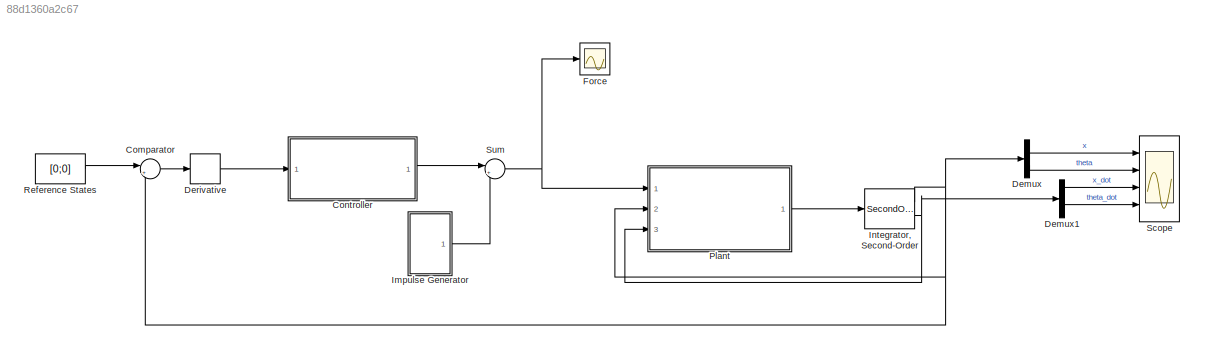
MODEL slx_88d1360a2c67
KIND model
CONFIG AbsTol = auto
CONFIG EnableMultiTasking = off
CONFIG FixedStep = auto
CONFIG MaxStep = auto
CONFIG MinStep = auto
CONFIG RelTol = 1e-3
CONFIG SampleTimeConstraint = Unconstrained
CONFIG SolverName = VariableStepAuto
CONFIG StartTime = 0.0
CONFIG StopTime = 10.0
BLOCK [Sum] Comparator
  Inputs = |+-
  NameLocation = top
  Ports = [2, 1]
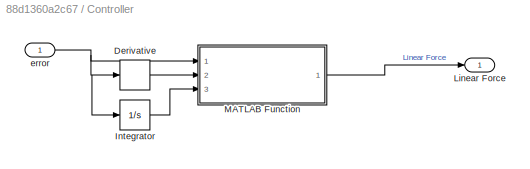
BLOCK [SubSystem] Controller
  Ports = [1, 1]
  RequestExecContextInheritance = off
BLOCK [Derivative] Controller/Derivative
BLOCK [Integrator] Controller/Integrator
  Ports = [1, 1]
BLOCK [Outport] Controller/Linear Force
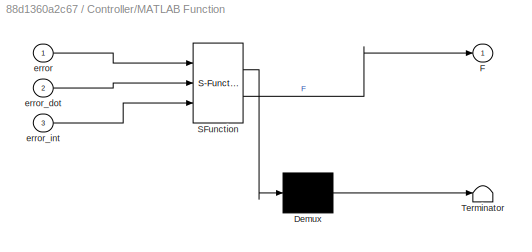
BLOCK [SubSystem] Controller/MATLAB Function
  ErrorFcn = Stateflow.Translate.translate
  PermitHierarchicalResolution = ExplicitOnly
  Ports = [3, 1]
  RequestExecContextInheritance = off
  SFBlockType = MATLAB Function
  TreatAsAtomicUnit = on
BLOCK [Demux] Controller/MATLAB Function/ Demux 
  Outputs = 1
  Ports = [1, 1]
BLOCK [S-Function] Controller/MATLAB Function/ SFunction 
  EnableBusSupport = on
  FunctionName = sf_sfun
  PortCounts = [3 2]
  Ports = [3, 2]
  SFcnIsStateOwnerBlock = off
  SFunctionDeploymentMode = off
  Tag = Stateflow S-Function 1
BLOCK [Terminator] Controller/MATLAB Function/ Terminator 
BLOCK [Outport] Controller/MATLAB Function/F
BLOCK [Inport] Controller/MATLAB Function/error
BLOCK [Inport] Controller/MATLAB Function/error_dot
  Port = 2
BLOCK [Inport] Controller/MATLAB Function/error_int
  Port = 3
BLOCK [Inport] Controller/error
BLOCK [Demux] Demux
  Outputs = 2
  Ports = [1, 2]
BLOCK [Demux] Demux1
  Outputs = 2
  Ports = [1, 2]
BLOCK [Derivative] Derivative
BLOCK [Scope] Force
  Floating = off
  NumInputPorts = 1
  Ports = [1]
  ScopeSpecificationString = Simulink.scopes.TimeScopeBlockCfg('CurrentConfiguration', extmgr.ConfigurationSet(extmgr.Configuration('Core','General UI',true),extmgr.Configuration('Core','Source UI',true),extmgr.Configuration('Sources','WiredSimulink',true,'DataLoggingVariableName','ScopeData1'),extmgr.Configuration('Visuals','Time Domain',true,'SerializedDisplays',{struct('MinYLimReal','-0.0125','MaxYLimReal','0.1125','YLabel...<+1385ch>
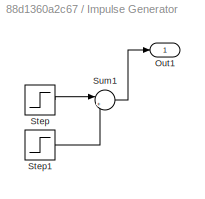
BLOCK [SubSystem] Impulse Generator
  Ports = [0, 1]
  RequestExecContextInheritance = off
BLOCK [Outport] Impulse Generator/Out1
BLOCK [Step] Impulse Generator/Step
  After = 0.1
  SampleTime = 1
BLOCK [Step] Impulse Generator/Step1
  After = 0.1
  SampleTime = 1
  Time = 2
BLOCK [Sum] Impulse Generator/Sum1
  Inputs = |+-
  Ports = [2, 1]
BLOCK [SecondOrderIntegrator] Integrator, Second-Order
  ICDXDT = [0,0]
  ICX = [0,0]
  Ports = [1, 2]
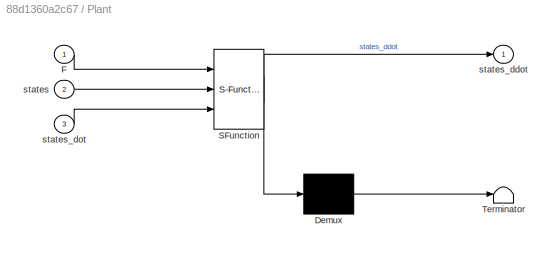
BLOCK [SubSystem] Plant
  ErrorFcn = Stateflow.Translate.translate
  PermitHierarchicalResolution = ExplicitOnly
  Ports = [3, 1]
  RequestExecContextInheritance = off
  SFBlockType = MATLAB Function
  TreatAsAtomicUnit = on
BLOCK [Demux] Plant/ Demux 
  Outputs = 1
  Ports = [1, 1]
BLOCK [S-Function] Plant/ SFunction 
  EnableBusSupport = on
  FunctionName = sf_sfun
  PortCounts = [3 2]
  Ports = [3, 2]
  SFcnIsStateOwnerBlock = off
  SFunctionDeploymentMode = off
  Tag = Stateflow S-Function 2
BLOCK [Terminator] Plant/ Terminator 
BLOCK [Inport] Plant/F
BLOCK [Inport] Plant/states
  Port = 2
BLOCK [Outport] Plant/states_ddot
BLOCK [Inport] Plant/states_dot
  Port = 3
BLOCK [Constant] Reference States
  SampleTime = 1
  Value = [0;0]
BLOCK [Scope] Scope
  Floating = off
  NumInputPorts = 4
  Ports = [4]
  ScopeSpecificationString = Simulink.scopes.TimeScopeBlockCfg('CurrentConfiguration', extmgr.ConfigurationSet(extmgr.Configuration('Core','General UI',true),extmgr.Configuration('Core','Source UI',true),extmgr.Configuration('Sources','WiredSimulink',true),extmgr.Configuration('Visuals','Time Domain',true,'SerializedDisplays',{struct('MinYLimReal','-0.00007','MaxYLimReal','0.00061','YLabelReal','','MinYLimMag','0.00000','MaxY...<+3325ch>
BLOCK [Sum] Sum
  Inputs = |++
  Ports = [2, 1]
LINE Comparator:1 -> Derivative:1
LINE Controller/Derivative:1 -> Controller/MATLAB Function:2
LINE Controller/Integrator:1 -> Controller/MATLAB Function:3
LINE Controller/MATLAB Function:1 -> Controller/Linear Force:1
NET Controller/error:1 -> Controller/Derivative:1, Controller/Integrator:1, Controller/MATLAB Function:1
LINE Controller:1 -> Sum:1
LINE Demux1:1 -> Scope:3
LINE Demux1:2 -> Scope:4
LINE Demux:1 -> Scope:1
LINE Demux:2 -> Scope:2
LINE Derivative:1 -> Controller:1
LINE Impulse Generator/Step1:1 -> Impulse Generator/Sum1:2
LINE Impulse Generator/Step:1 -> Impulse Generator/Sum1:1
LINE Impulse Generator/Sum1:1 -> Impulse Generator/Out1:1
LINE Impulse Generator:1 -> Sum:2
NET Integrator, Second-Order:1 -> Comparator:2, Demux:1, Plant:2
NET Integrator, Second-Order:2 -> Demux1:1, Plant:3
LINE Plant:1 -> Integrator, Second-Order:1
LINE Reference States:1 -> Comparator:1
NET Sum:1 -> Force:1, Plant:1
note: NET lines group one-source signal fan-out (src -> all destinations, sorted); 1:1 wires keep LINE
CHART Controller/MATLAB Function states=1 transitions=1
  STATE_LABEL 'eML_blk_kernel()'
  STATE_LABEL 'SCRIPT:\nfunction F = fcn(error,error_dot,error_int)\n\nM1=0.121;\nM2=0.086;\nL=0.3;\ng=9.81;\n\nKp=10;\nKd=1;\nKi=1;\n\nerror_ddot=-Kp.*error(1)-Kd.*error_dot(1)-Ki*error_int(1);\n\nF=-error_ddot*(M1+M2*(1-0.75*cos(error(2))*cos(error(2))))-0.75*M2*g*sin(error(2))*cos(error(2))+0.5*M2*L*error_dot(2)*error_dot(2)*sin(error(2));\n\n% states_ddot=[(F+0.75*M2*g*sin(states(2))*cos(states(2))-0.5*M2*L*states_dot(2)*st...<+251ch>'
CHART Plant states=1 transitions=1
  STATE_LABEL 'eML_blk_kernel()'
  STATE_LABEL 'SCRIPT:\nfunction states_ddot = fcn(F,states, states_dot)\nM1=0.121;\nM2=0.086;\nL=0.3;\ng=9.81;\nstates_ddot=[(F+0.75*M2*g*sin(states(2))*cos(states(2))-0.5*M2*L*states_dot(2)*states_dot(2)*sin(states(2)))/(M1+M2*(1-0.75*cos(states(2))*cos(states(2))));\n    1.5*((M1+M2)*g*sin(states(2))+F*cos(states(2))-0.5*M2*L*states_dot(2)*states_dot(2)*sin(states(2))*cos(states(2)))/(L*(M1+M2*(1-0.75*cos(states(2))...<+21ch>'
CHART  states=0 transitions=0
CHART  states=0 transitions=0
